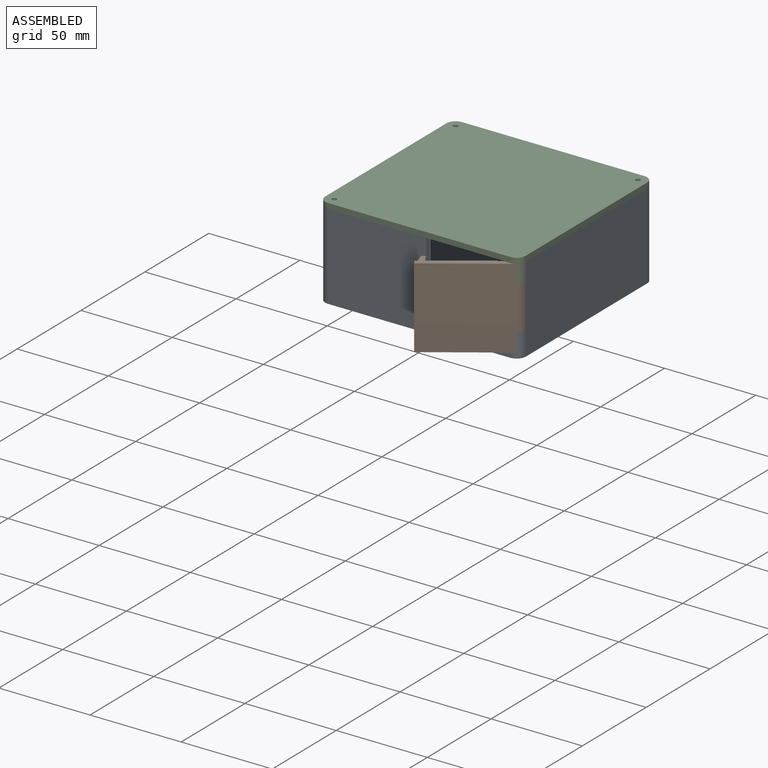
[diagram: assembled view]
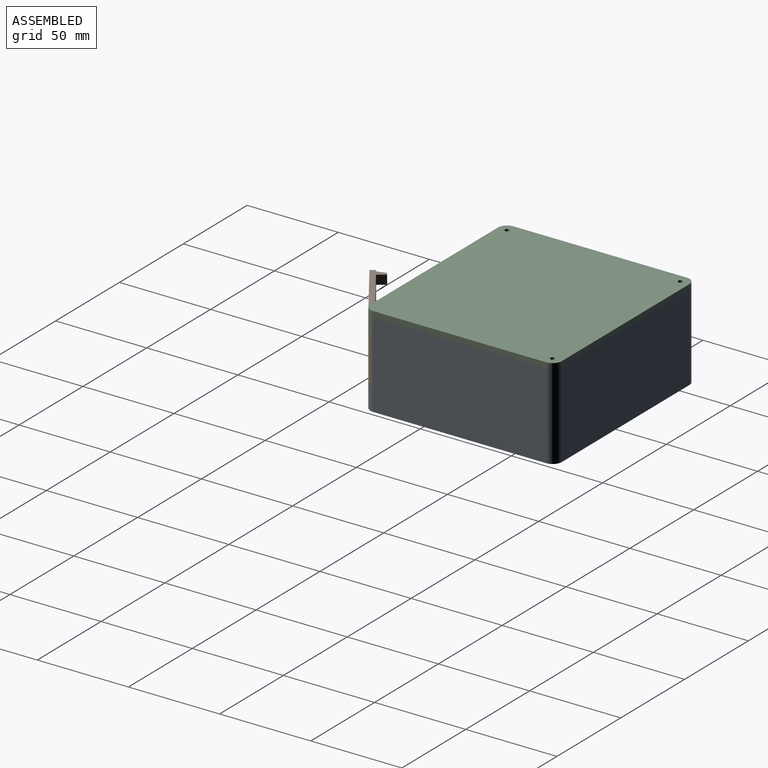
[diagram: assembled view, second angle]
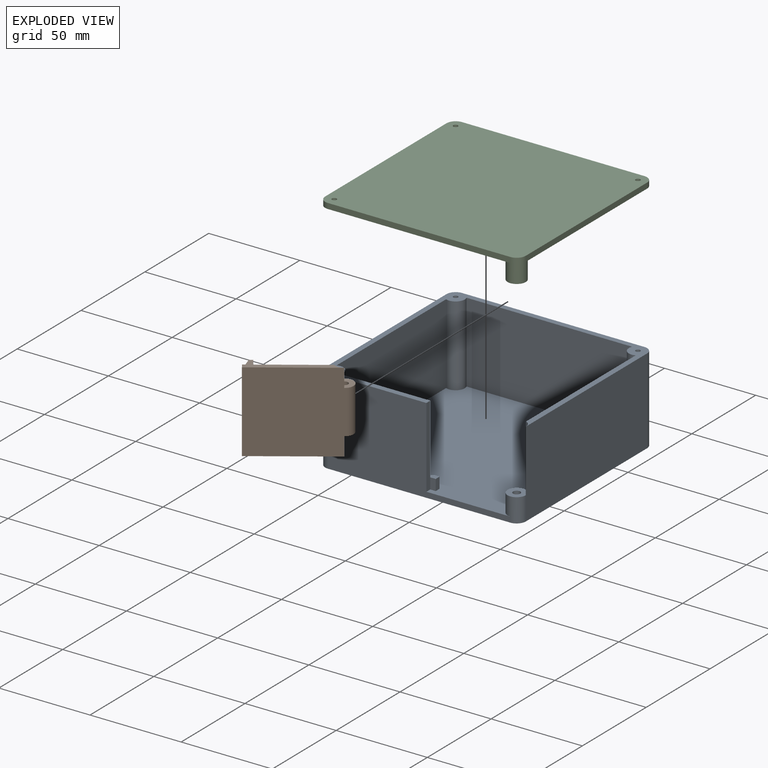
[diagram: exploded view]
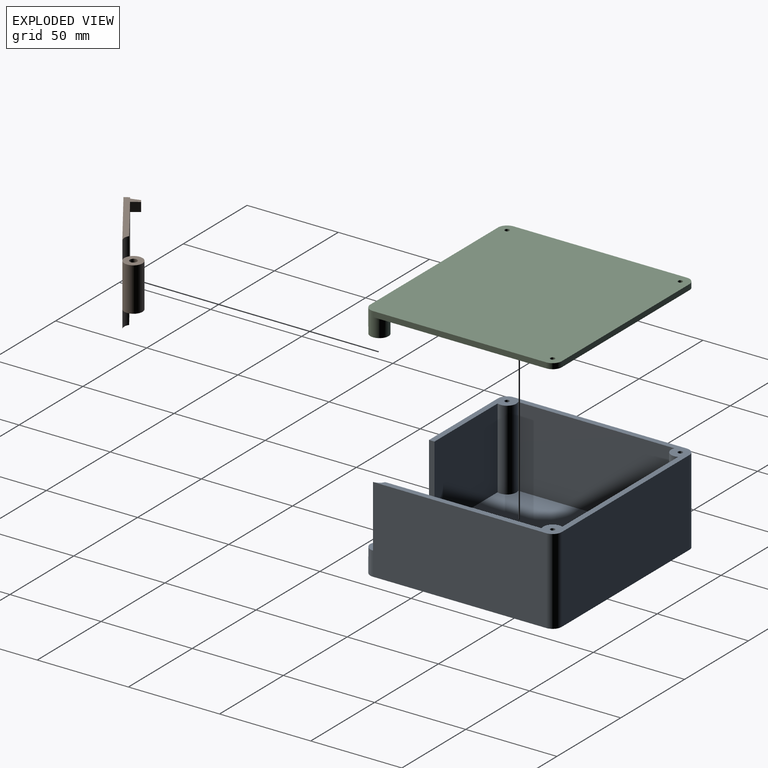
[diagram: exploded view, second angle]
ASSEMBLY  parts=3 mates=3
PART A: 34 faces, bbox 110x105x47 mm
  f0: plane 104x102mm, normal (0,0,1), area 10238.2mm2, adj f1,f2,f3,f4,f5,f6,f15,f16
  f1: cylinder r=5mm len=13mm, axis (0,0,-1), area 279.8mm2, adj f0,f2,f3,f8,f11,f25
  f2: plane 85.84x44mm, normal (1,0,0), area 3776.7mm2, adj f0,f1,f7,f15,f28
  f3: plane 100x47mm, normal (0,1,0), area 2676mm2, adj f0,f1,f7,f11,f14,f24
  f4: plane 49.42x44mm, normal (0,-1,0), area 2156.4mm2, adj f0,f7,f17,f24,f32,f33
  f5: plane 85.84x44mm, normal (-1,0,0), area 3776.7mm2, adj f0,f7,f16,f17
  f6: plane 90.84x44mm, normal (0,1,0), area 3996.7mm2, adj f0,f7,f15,f16
  f7: plane 110x105mm, normal (0,0,1), area 1183.5mm2, adj f2,f3,f4,f5,f6,f8,f9,f10
  f8: plane 95x47mm, normal (-1,0,0), area 4465mm2, adj f1,f7,f11,f12,f28
  f9: plane 100x47mm, normal (0,-1,0), area 4700mm2, adj f7,f11,f12,f13
  f10: plane 95x47mm, normal (1,0,0), area 4465mm2, adj f7,f11,f13,f14
  f11: plane 110x105mm, normal (0,0,-1), area 11528.5mm2, adj f1,f3,f8,f9,f10,f12,f13,f14
  f12: cylinder r=5mm len=47mm, axis (0,0,1), area 369.1mm2, adj f7,f8,f9,f11
  f13: cylinder r=5mm len=47mm, axis (0,0,-1), area 369.1mm2, adj f7,f9,f10,f11
  f14: cylinder r=5mm len=47mm, axis (0,0,1), area 369.1mm2, adj f3,f7,f10,f11
  f15: cylinder r=5mm len=44mm, axis (0,0,-1), area 526.6mm2, adj f0,f2,f6,f7
  f16: cylinder r=5mm len=44mm, axis (0,0,-1), area 526.6mm2, adj f0,f5,f6,f7
  f17: cylinder r=5mm len=44mm, axis (0,0,-1), area 526.6mm2, adj f0,f4,f5,f7
  f18: cylinder r=1.25mm len=44mm, axis (0,0,-1), area 345.6mm2, adj f7,f19
  f19: plane 2.5x2.5mm, normal (0,0,1), area 4.9mm2, adj f18
  f20: cylinder r=1.25mm len=44mm, axis (0,0,-1), area 345.6mm2, adj f7,f21
  f21: plane 2.5x2.5mm, normal (0,0,1), area 4.9mm2, adj f20
  f22: cylinder r=1.25mm len=44mm, axis (0,0,-1), area 345.6mm2, adj f7,f23
  f23: plane 2.5x2.5mm, normal (0,0,1), area 4.9mm2, adj f22
  f24: plane 44x3mm, normal (-1,0,0), area 132mm2, adj f0,f3,f4,f7,f29
  f25: plane 10x10mm, normal (0,0,1), area 66mm2, adj f1,f26,f28
  f26: cylinder r=2mm len=10mm, axis (0,0,-1), area 125.7mm2, adj f25,f27
  f27: plane 4x4mm, normal (0,0,1), area 12.6mm2, adj f26
  f28: cylinder r=5mm len=34mm, axis (0,0,1), area 197.1mm2, adj f2,f7,f8,f25
  f29: plane 6x3mm, normal (0,1,0), area 18mm2, adj f0,f24,f30,f32
  f30: plane 6x3mm, normal (-1,0,0), area 18mm2, adj f0,f29,f31,f32
  f31: plane 6x3mm, normal (0,-1,0), area 18mm2, adj f0,f30,f32,f33
  f32: plane 6x3mm, normal (0,0,1), area 13.5mm2, adj f4,f29,f30,f31,f33
  f33: plane 6x3mm, normal (0.71,-0.71,0), area 25.5mm2, adj f0,f4,f31,f32
PART B: 15 faces, bbox 51x44x10 mm
  f0: plane 44x3mm, normal (1,0,0), area 132mm2, adj f2,f4,f5,f6
  f1: plane 5x3.5mm, normal (0,1,0), area 13.7mm2, adj f4,f12,f13,f14
  f2: plane 46x8mm, normal (0,-1,0), area 141.8mm2, adj f0,f4,f5,f7,f12,f13,f14
  f3: cylinder r=5mm len=10mm, axis (0,1,0), area 58mm2, adj f4,f5,f6,f11
  f4: plane 44x41.42mm, normal (0,0,-1), area 1804.9mm2, adj f0,f1,f2,f3,f6,f7,f8,f12
  f5: plane 46x44mm, normal (0,0,1), area 2024mm2, adj f0,f2,f3,f6,f7,f8
  f6: plane 46x3mm, normal (0,1,0), area 128.1mm2, adj f0,f3,f4,f5
  f7: cylinder r=5mm len=10mm, axis (0,1,0), area 58mm2, adj f2,f4,f5,f10
  f8: cylinder r=5mm len=24mm, axis (0,1,0), area 614.9mm2, adj f4,f5,f10,f11
  f9: cylinder r=2mm len=24mm, axis (0,1,0), area 301.6mm2, adj f10,f11
  f10: plane 10x10mm, normal (0,-1,0), area 66mm2, adj f7,f8,f9
  f11: plane 10x10mm, normal (0,1,0), area 66mm2, adj f3,f8,f9
  f12: plane 5x5mm, normal (-1,0,0), area 25mm2, adj f1,f2,f4,f13
  f13: plane 5x2mm, normal (0,0,-1), area 10mm2, adj f1,f2,f12,f14
  f14: plane 5x5mm, normal (0.96,0,-0.29), area 26.1mm2, adj f1,f2,f4,f13
PART C: 16 faces, bbox 110x105x13 mm
  f0: plane 95x3mm, normal (-1,0,0), area 285mm2, adj f4,f5,f6,f9
  f1: plane 100x3mm, normal (0,-1,0), area 300mm2, adj f4,f5,f6,f7
  f2: plane 95x3mm, normal (1,0,0), area 285mm2, adj f4,f5,f7,f8
  f3: plane 100x3mm, normal (0,1,0), area 300mm2, adj f4,f5,f8,f9
  f4: plane 110x105mm, normal (0,0,1), area 11435.3mm2, adj f0,f1,f2,f3,f6,f7,f8,f9
  f5: plane 110x105mm, normal (0,0,-1), area 11513.8mm2, adj f0,f1,f2,f3,f6,f7,f8,f9
  f6: cylinder r=5mm len=5mm, axis (0,0,1), area 23.6mm2, adj f0,f1,f4,f5
  f7: cylinder r=5mm len=5mm, axis (0,0,-1), area 23.6mm2, adj f1,f2,f4,f5
  f8: cylinder r=5mm len=13mm, axis (0,0,1), area 337.7mm2, adj f2,f3,f4,f5,f14
  f9: cylinder r=5mm len=5mm, axis (0,0,-1), area 23.6mm2, adj f0,f3,f4,f5
  f10: cylinder r=1.25mm len=3mm, axis (0,0,1), area 23.6mm2, adj f4,f5
  f11: cylinder r=1.25mm len=3mm, axis (0,0,1), area 23.6mm2, adj f4,f5
  f12: cylinder r=1.25mm len=3mm, axis (0,0,1), area 23.6mm2, adj f4,f5
  f13: cylinder r=2mm len=10mm, axis (0,0,-1), area 125.7mm2, adj f14,f15
  f14: plane 10x10mm, normal (0,0,1), area 66mm2, adj f8,f13
  f15: plane 4x4mm, normal (0,0,1), area 12.6mm2, adj f13
PLACE A rot(axis=(0,0,1),180deg) t=(-109.33,-76.37,-3.5)mm
PLACE B rot(axis=(-0.21,0.69,-0.69),155.9deg) t=(-76.34,-139.74,-2)mm
PLACE C rot(axis=(1,0,0),180deg) t=(-109.33,-76.37,21.5)mm
MATE revolute C.f7 <-> A.f12  axis (0,0,-1) through (-59.33,-28.87,20)mm
MATE revolute B.f3 <-> C.f8  axis (0,0,1) through (-59.33,-123.87,10)mm
MATE revolute C.f9 <-> A.f14  axis (0,0,-1) through (-159.33,-123.87,20)mm
